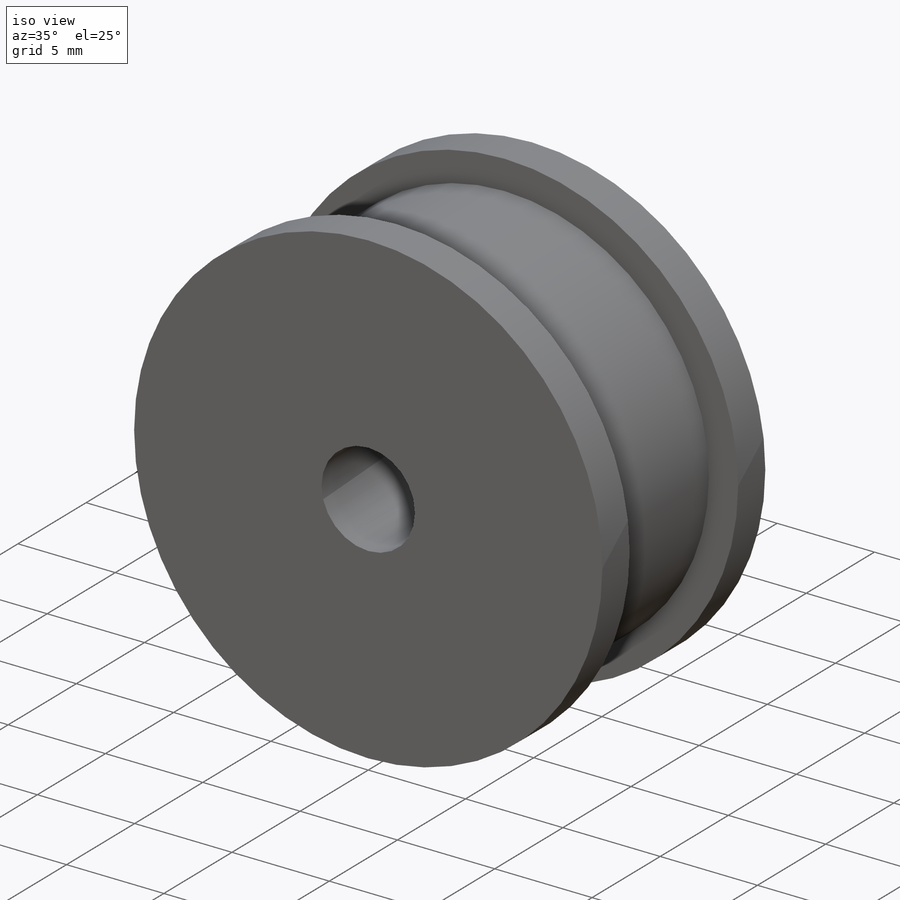
[diagram: iso view]
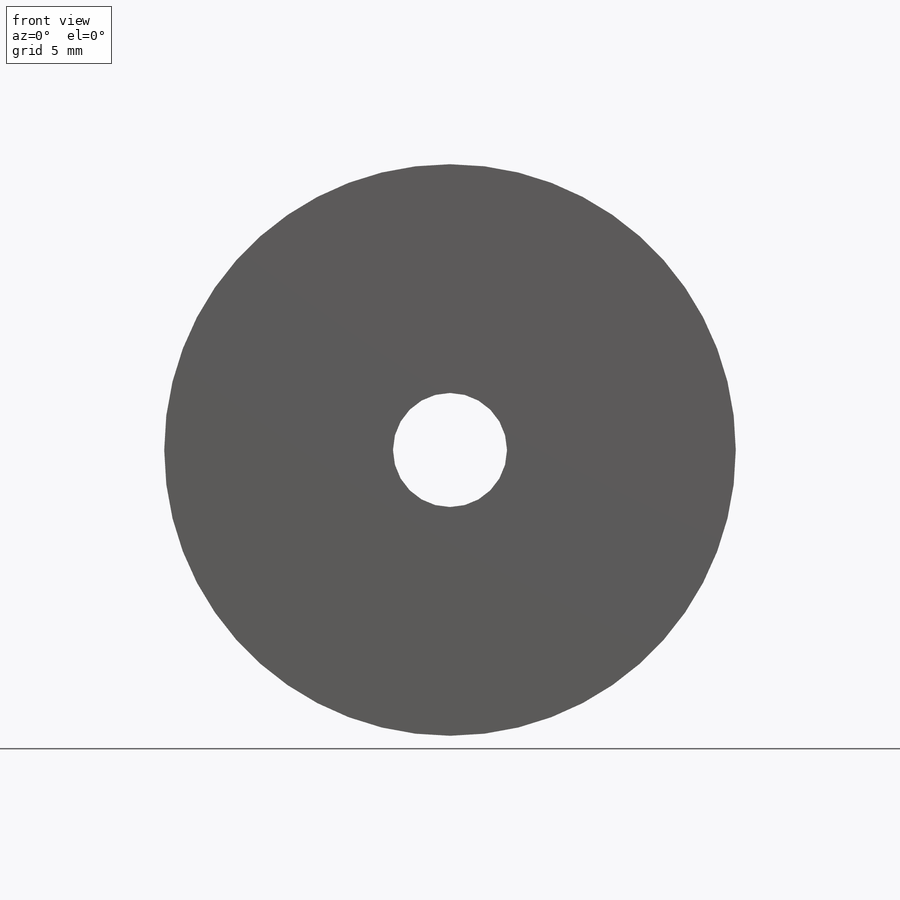
[diagram: front view]
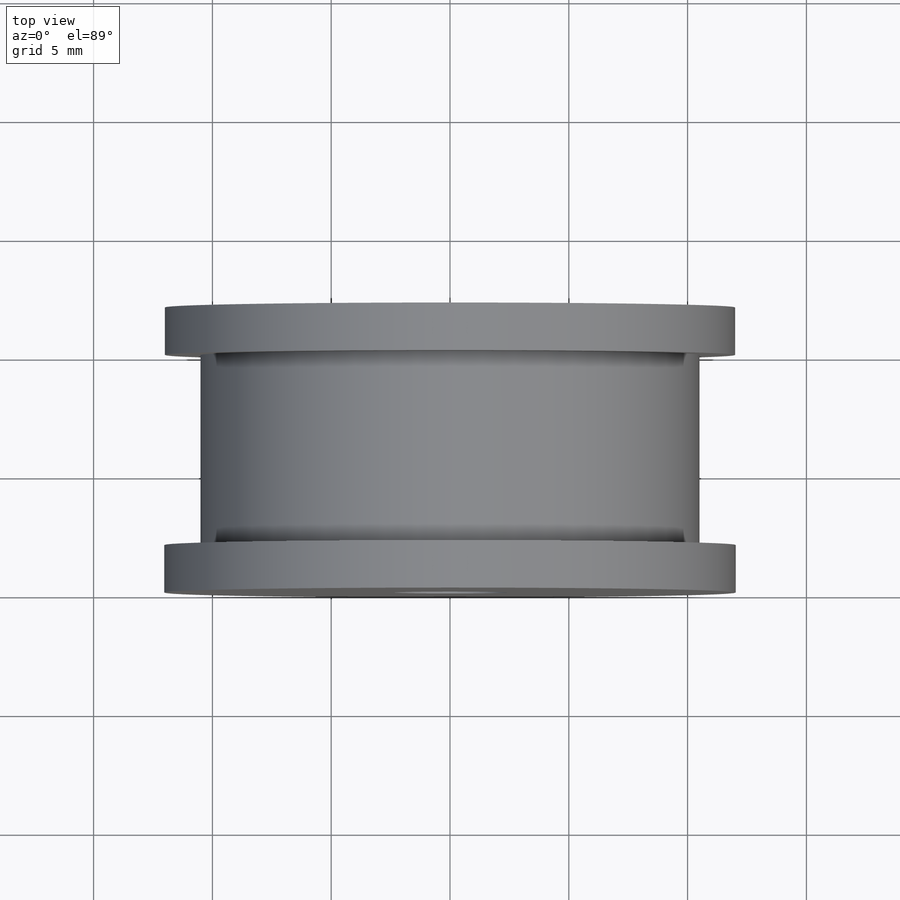
[diagram: top view]
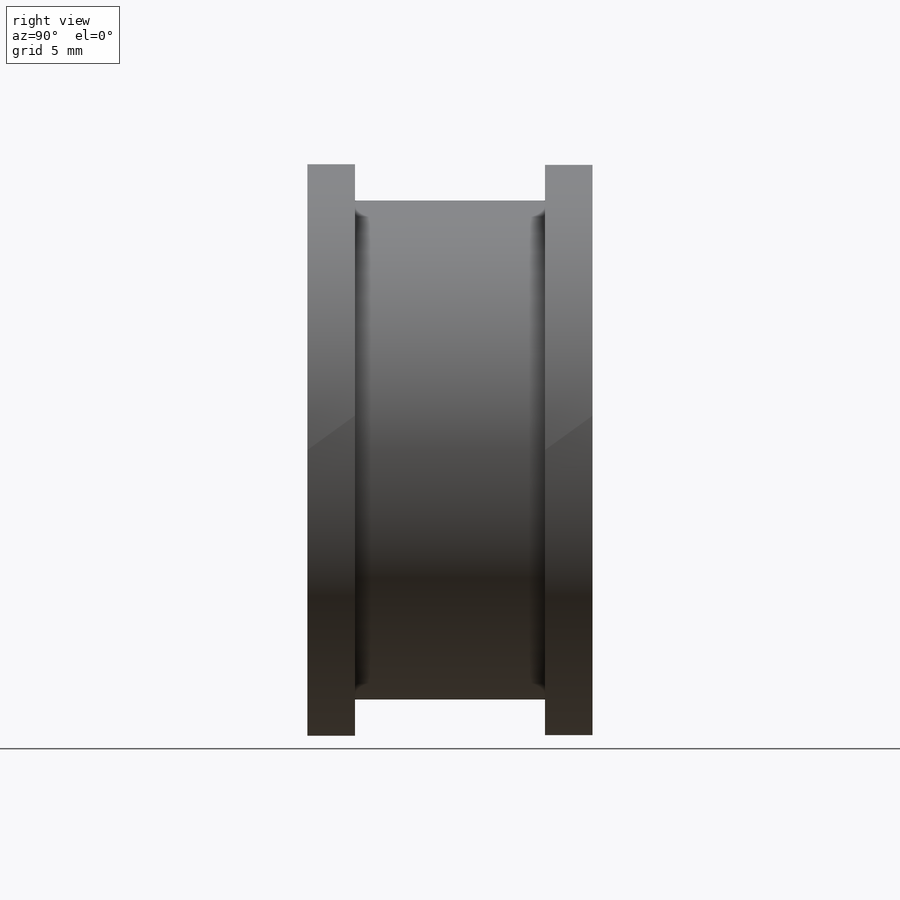
[diagram: right view]
SOLIDWORKS PART (.sldprt)
format: sldprt  version: not decoded by parser v0  size: 152,576 bytes
history: native  units: mm
features: plane x3, sketch x3, extrude x3, material x1 (+10 scaffold rows collapsed)
feature tree (20):
  scaffold x10  (default folders/planes/origin — collapsed)
  material  "Material <não especificado>"
  plane  "Plano frontal"
  plane  "Plano superior"
  plane  "Plano direito"
  sketch  "Esboço1"  dims[D1=21.0mm D2=4.8mm]
  extrude  "Ressalto-extrusão1"  Depth=8mm
  sketch  "Esboço2"  dims[D1=24.0mm]
  extrude  "Ressalto-extrusão2"  Depth=2mm
  sketch  "3DSketch2"
  extrude  "Ressalto-extrusão3"  Depth=2mm
decode coverage: 5 of 6 modeling features carry decoded parameters
note: suppression state not decoded; provenance and decode notes live in map.json
